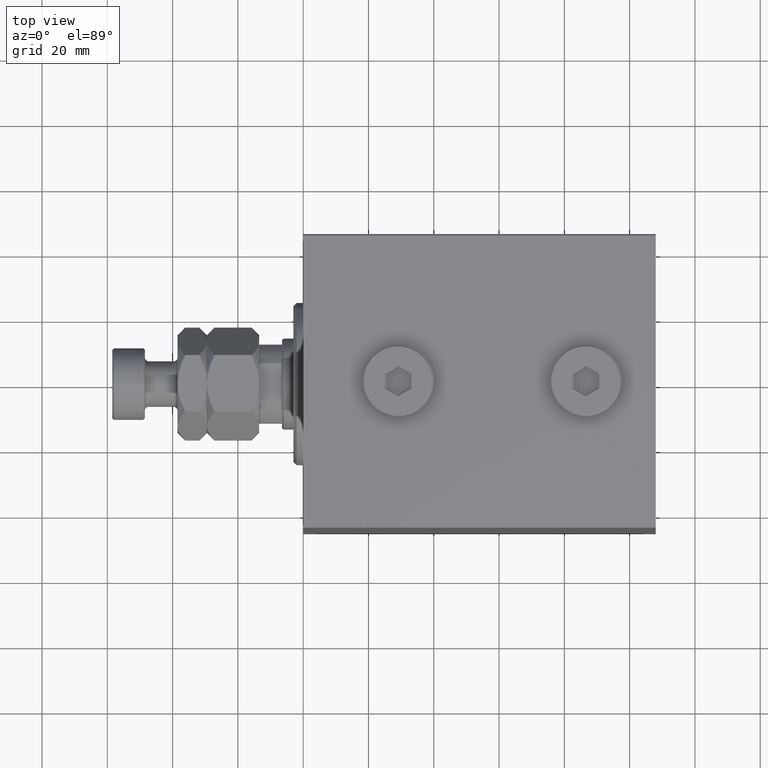
[diagram: clean part render]
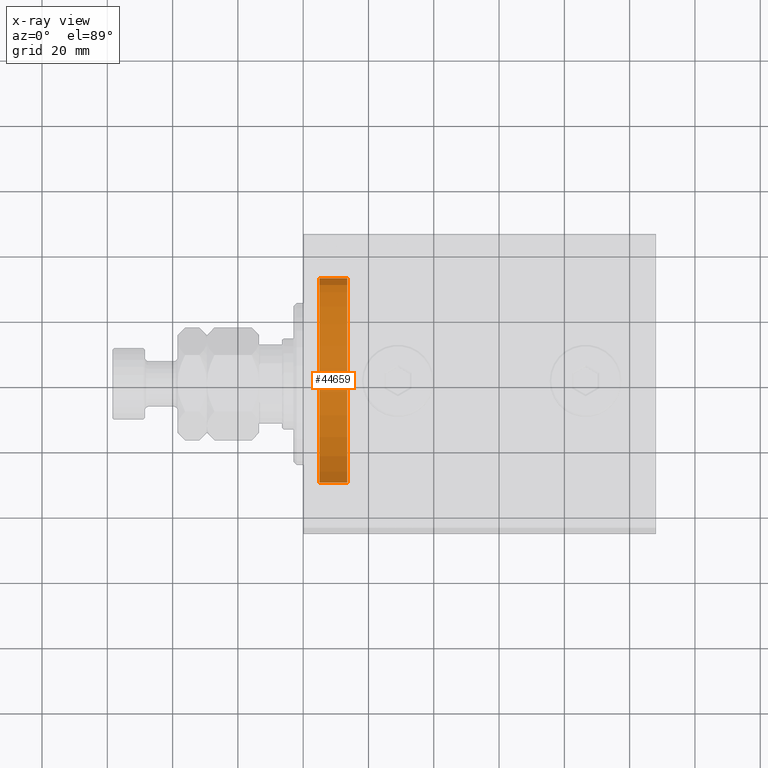
[diagram: x-ray — body ghosted, one internal face saturated and labeled with its STEP entity id]
A machine part, top view, then the same camera in x-ray: the body is ghosted and one INTERNAL B-rep face — a face not visible from any outside direction — is saturated and labeled: STEP entity #44659.
In plain terms, the highlighted cylindrical surface (partial cylindrical patch) has radius 32.5 mm, axis along (-1, 0, 0).
Its self-contained STEP definition (entity closure, byte-faithful):
#2081 = VERTEX_POINT ( 'NONE', #42884 ) ;
#2771 = CARTESIAN_POINT ( 'NONE',  ( -13.50000000000000178, 3.980102097228898626E-15, 32.50000000000000000 ) ) ;
#3252 = DIRECTION ( 'NONE',  ( -1.000000000000000000, 0.000000000000000000, 0.000000000000000000 ) ) ;
#4523 = ORIENTED_EDGE ( 'NONE', *, *, #13229, .T. ) ;
#5526 = DIRECTION ( 'NONE',  ( 0.000000000000000000, 0.000000000000000000, 1.000000000000000000 ) ) ;
#6967 = LINE ( 'NONE', #16094, #40458 ) ;
#8621 = ORIENTED_EDGE ( 'NONE', *, *, #26310, .T. ) ;
#8991 = FACE_OUTER_BOUND ( 'NONE', #16367, .T. ) ;
#9222 = DIRECTION ( 'NONE',  ( 0.000000000000000000, 0.000000000000000000, -1.000000000000000000 ) ) ;
#10863 = CARTESIAN_POINT ( 'NONE',  ( -5.000000000000000000, 0.000000000000000000, 0.000000000000000000 ) ) ;
#11117 = DIRECTION ( 'NONE',  ( 1.000000000000000000, -0.000000000000000000, -0.000000000000000000 ) ) ;
#11348 = CARTESIAN_POINT ( 'NONE',  ( -13.50000000000000178, 3.980102097228898626E-15, 32.50000000000000000 ) ) ;
#12521 = AXIS2_PLACEMENT_3D ( 'NONE', #37373, #37607, #5526 ) ;
#12551 = DIRECTION ( 'NONE',  ( 1.000000000000000000, -0.000000000000000000, -0.000000000000000000 ) ) ;
#13229 = EDGE_CURVE ( 'NONE', #16861, #45085, #14431, .T. ) ;
#14057 = ORIENTED_EDGE ( 'NONE', *, *, #43810, .F. ) ;
#14431 = LINE ( 'NONE', #11348, #30689 ) ;
#16094 = CARTESIAN_POINT ( 'NONE',  ( -13.50000000000000178, 0.000000000000000000, -32.50000000000000000 ) ) ;
#16367 = EDGE_LOOP ( 'NONE', ( #14057, #4523, #8621, #19729 ) ) ;
#16599 = CARTESIAN_POINT ( 'NONE',  ( -13.50000000000000178, 0.000000000000000000, 0.000000000000000000 ) ) ;
#16861 = VERTEX_POINT ( 'NONE', #2771 ) ;
#19423 = CARTESIAN_POINT ( 'NONE',  ( -5.000000000000000000, 3.980102097228898626E-15, 32.50000000000000000 ) ) ;
#19729 = ORIENTED_EDGE ( 'NONE', *, *, #35635, .F. ) ;
#22029 = DIRECTION ( 'NONE',  ( 0.000000000000000000, 0.000000000000000000, 1.000000000000000000 ) ) ;
#22596 = CIRCLE ( 'NONE', #35477, 32.50000000000000000 ) ;
#25856 = CARTESIAN_POINT ( 'NONE',  ( -13.50000000000000178, 0.000000000000000000, -32.50000000000000000 ) ) ;
#26310 = EDGE_CURVE ( 'NONE', #45085, #2081, #22596, .T. ) ;
#27300 = DIRECTION ( 'NONE',  ( 1.000000000000000000, -0.000000000000000000, -0.000000000000000000 ) ) ;
#30689 = VECTOR ( 'NONE', #11117, 1000.000000000000000 ) ;
#33021 = AXIS2_PLACEMENT_3D ( 'NONE', #16599, #27300, #9222 ) ;
#33739 = VERTEX_POINT ( 'NONE', #25856 ) ;
#35477 = AXIS2_PLACEMENT_3D ( 'NONE', #10863, #3252, #22029 ) ;
#35635 = EDGE_CURVE ( 'NONE', #33739, #2081, #6967, .T. ) ;
#37373 = CARTESIAN_POINT ( 'NONE',  ( -13.50000000000000178, 0.000000000000000000, 0.000000000000000000 ) ) ;
#37607 = DIRECTION ( 'NONE',  ( -1.000000000000000000, 0.000000000000000000, 0.000000000000000000 ) ) ;
#38207 = CYLINDRICAL_SURFACE ( 'NONE', #33021, 32.50000000000000000 ) ;
#39055 = CIRCLE ( 'NONE', #12521, 32.50000000000000000 ) ;
#40458 = VECTOR ( 'NONE', #12551, 1000.000000000000000 ) ;
#42884 = CARTESIAN_POINT ( 'NONE',  ( -5.000000000000000000, 0.000000000000000000, -32.50000000000000000 ) ) ;
#43810 = EDGE_CURVE ( 'NONE', #16861, #33739, #39055, .T. ) ;
#44659 = ADVANCED_FACE ( 'NONE', ( #8991 ), #38207, .T. ) ;
#45085 = VERTEX_POINT ( 'NONE', #19423 ) ;